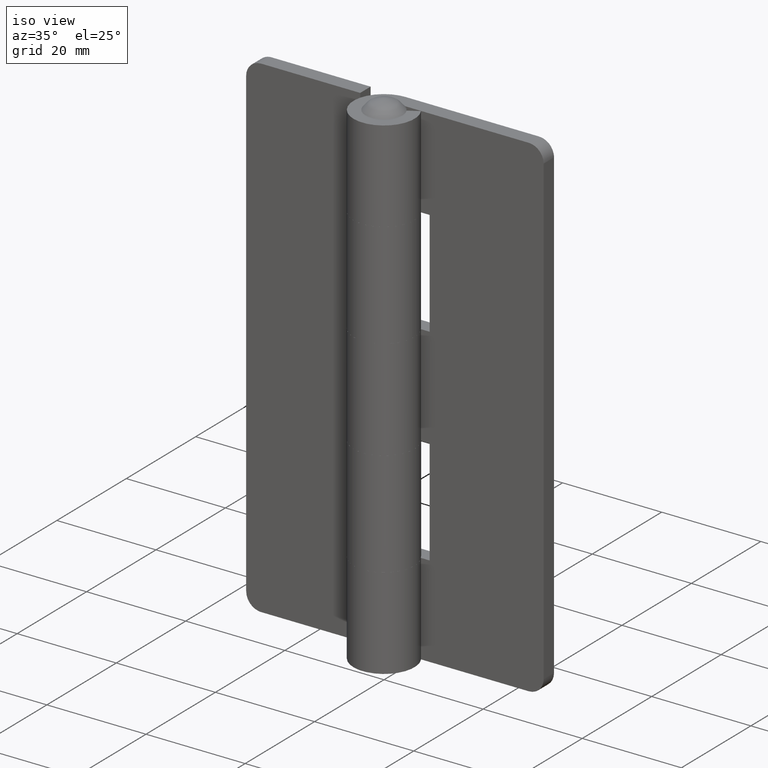
[diagram: clean part render]
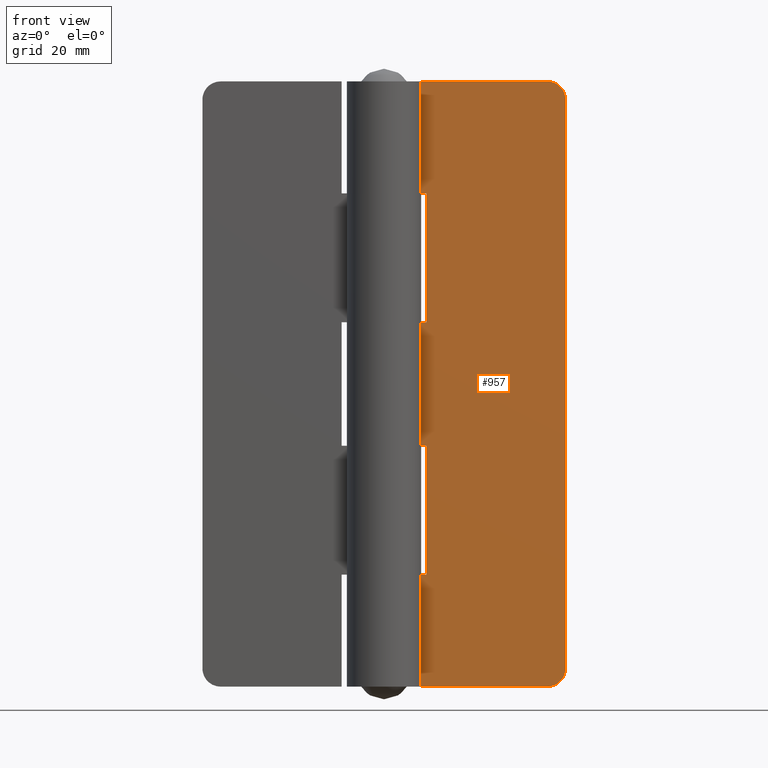
[diagram: tour spotlight — one face highlighted and labeled with its STEP entity id]
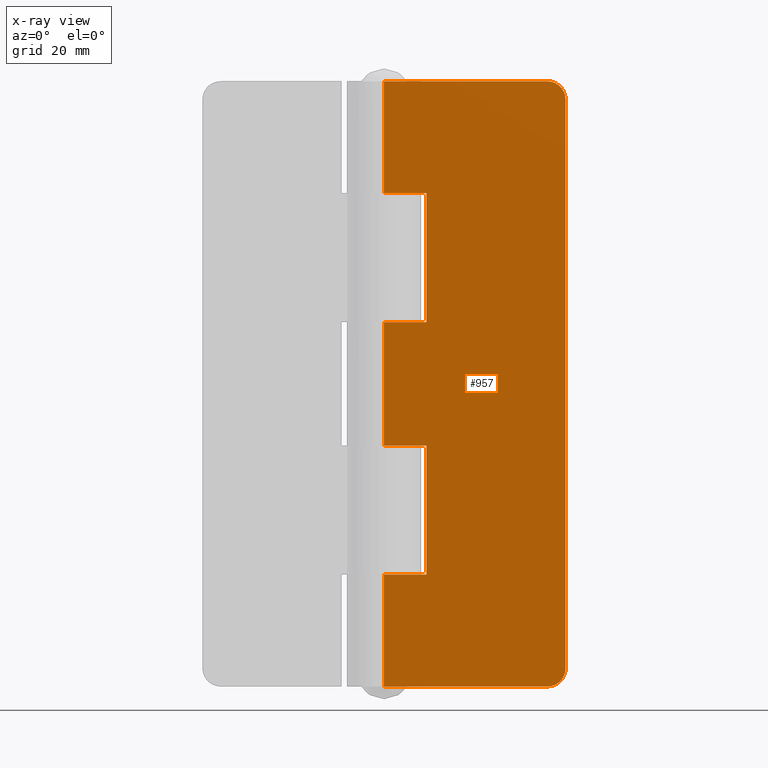
[diagram: x-ray of the same camera — body ghosted, this tour face saturated]
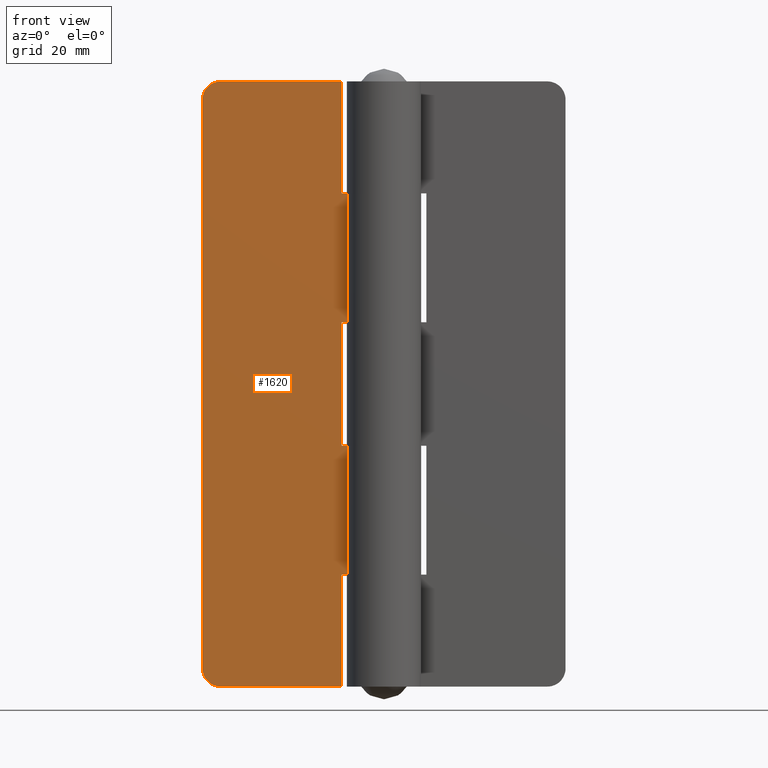
[diagram: tour spotlight — one face highlighted and labeled with its STEP entity id]
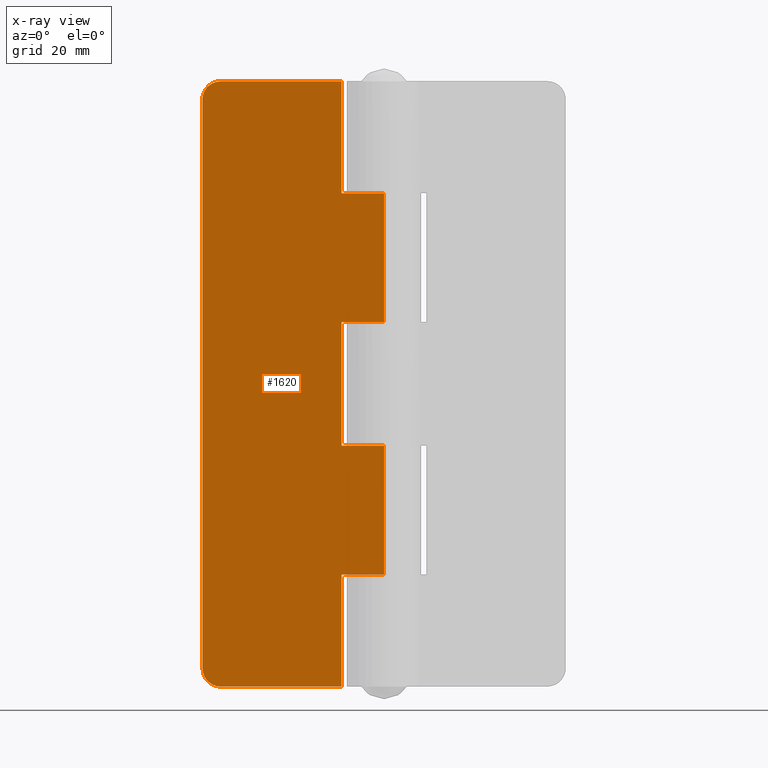
[diagram: x-ray of the same camera — body ghosted, this tour face saturated]
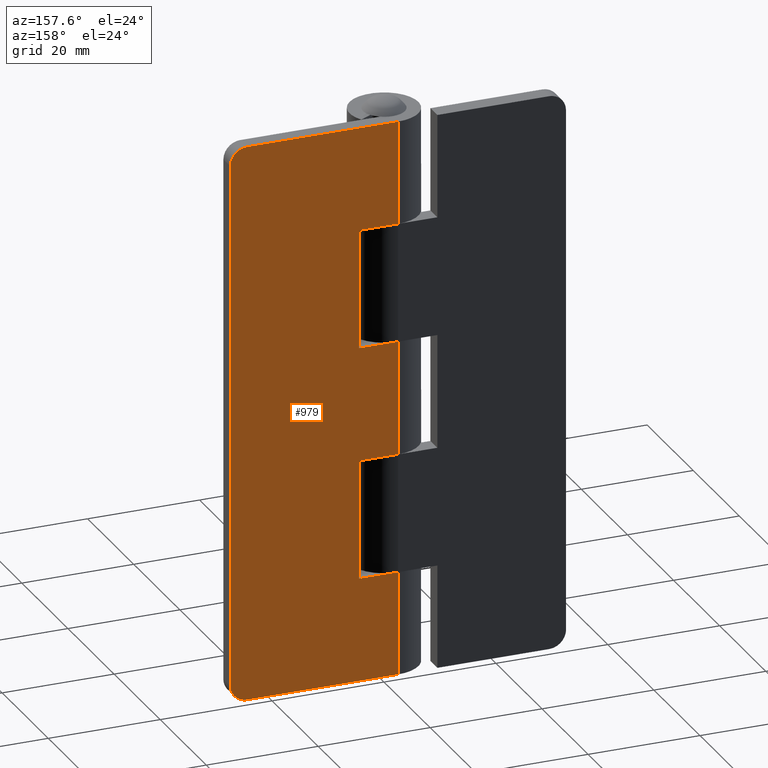
[diagram: tour spotlight — one face highlighted and labeled with its STEP entity id]
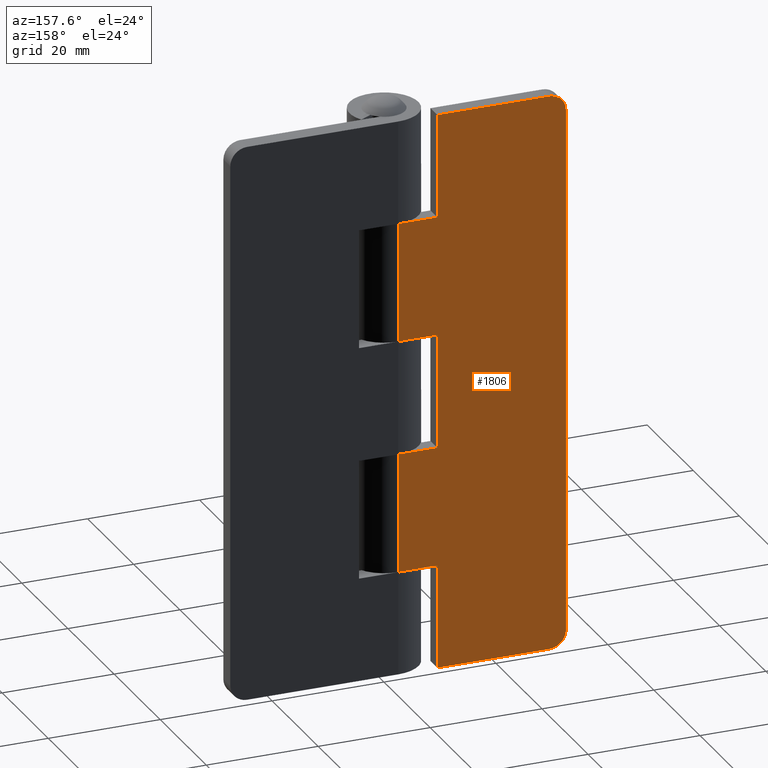
[diagram: tour spotlight — one face highlighted and labeled with its STEP entity id]
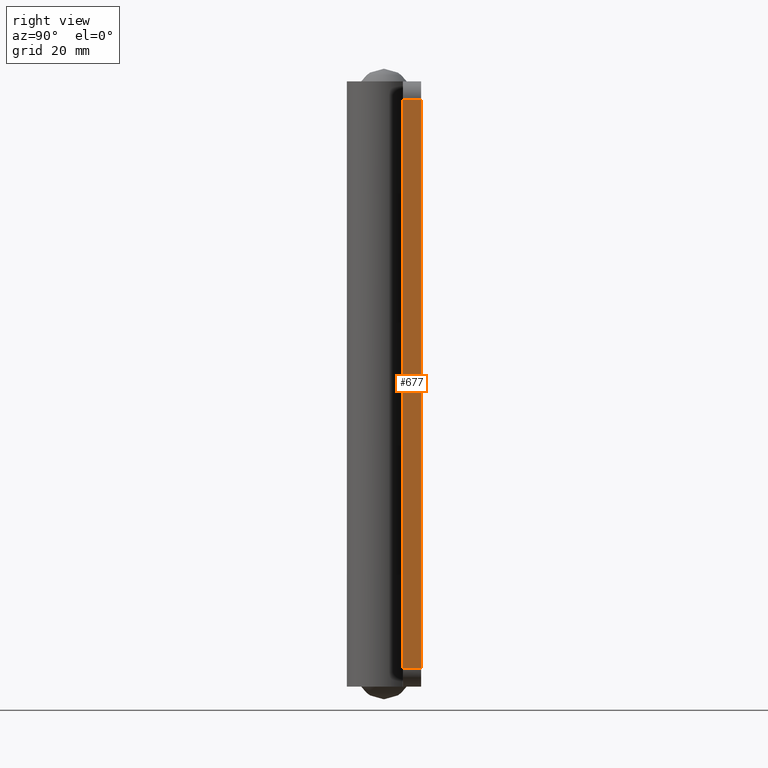
[diagram: tour spotlight — one face highlighted and labeled with its STEP entity id]
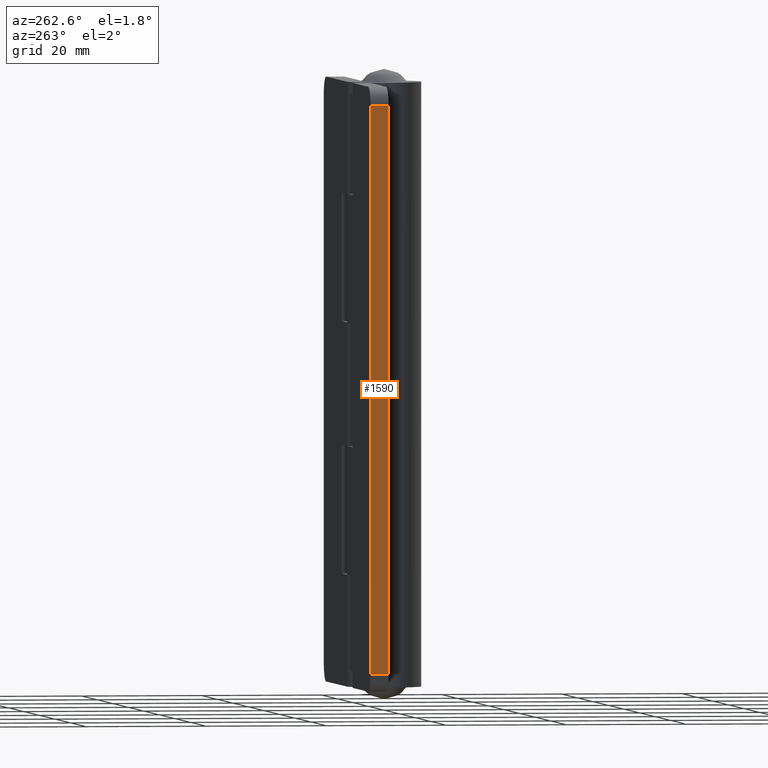
[diagram: tour spotlight — one face highlighted and labeled with its STEP entity id]
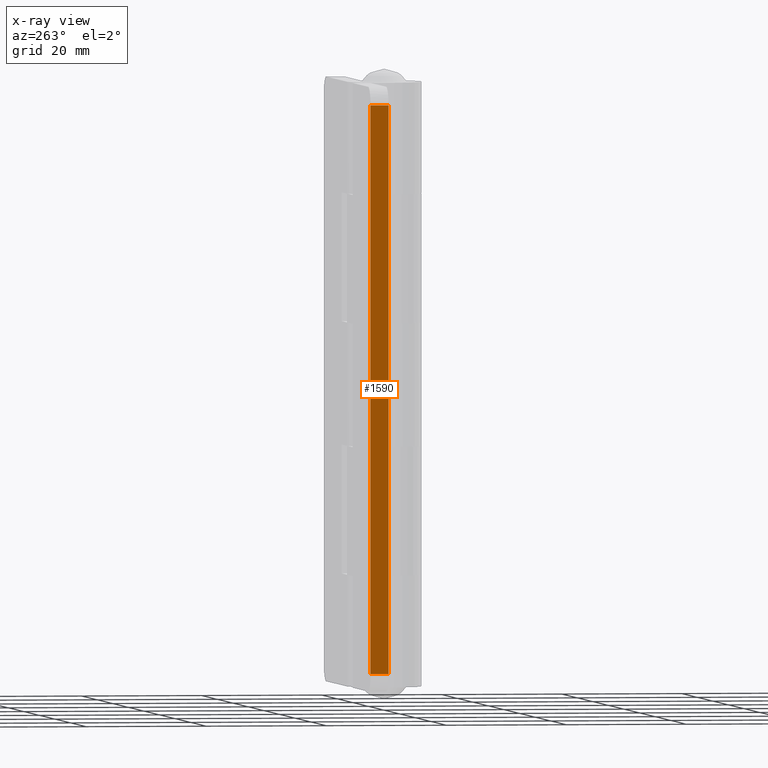
[diagram: x-ray of the same camera — body ghosted, this tour face saturated]
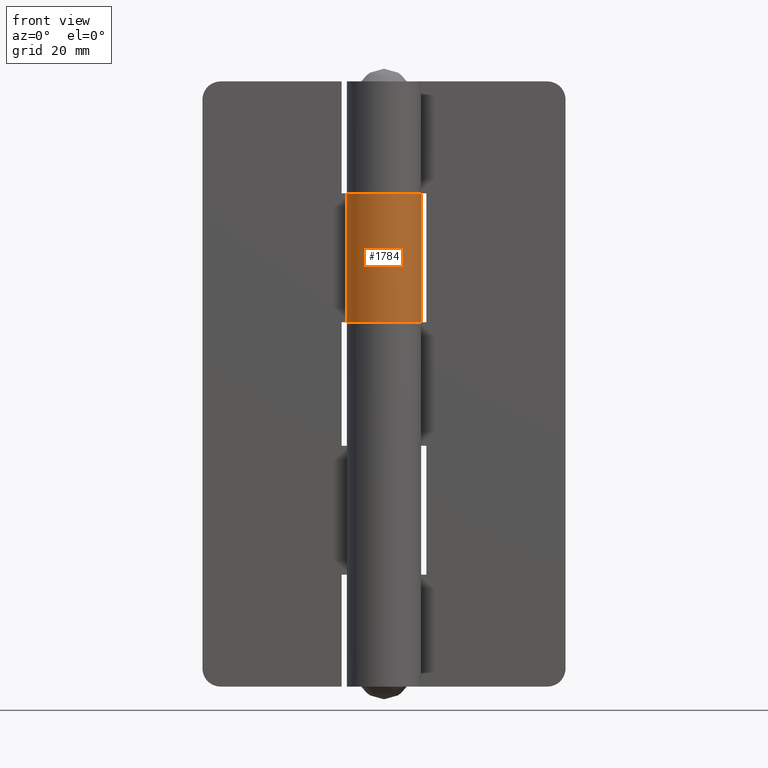
[diagram: tour spotlight — one face highlighted and labeled with its STEP entity id]
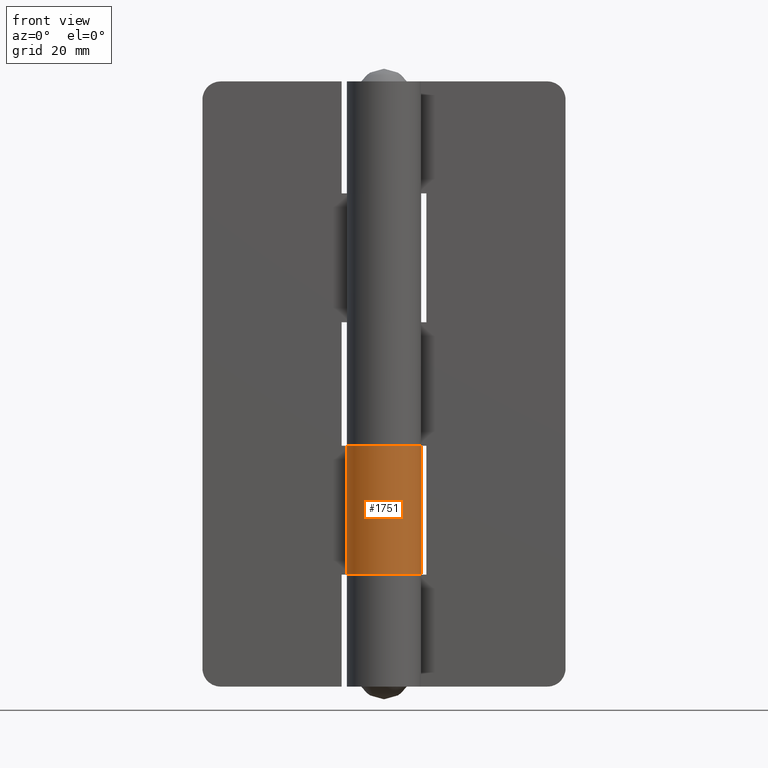
[diagram: tour spotlight — one face highlighted and labeled with its STEP entity id]
A machine part: a face-by-face anatomy tour. The part has 48 B-rep faces; the first image is the clean iso view, then the 8 largest visible faces are spotlighted one at a time (largest first), each with its STEP entity span.

Face 1 — front view, entity #957. An x-ray twin of the same camera follows (body ghosted, this face saturated) — the face is partly hidden behind the body. In plain terms, the highlighted face is a freeform B-spline surface patch.
Definition (entity closure, byte-faithful):
#75=CARTESIAN_POINT('',(27.0,3.150000000000000,100.0));
#76=VERTEX_POINT('',#75);
#82=CARTESIAN_POINT('',(30.0,3.150000000000000,97.0));
#83=VERTEX_POINT('',#82);
#84=CARTESIAN_POINT('',(30.0,3.150000000000000,97.0));
#85=CARTESIAN_POINT('',(30.000000000000004,3.149999999999999,100.0));
#86=CARTESIAN_POINT('',(27.0,3.150000000000000,100.0));
#94=(BOUNDED_CURVE()B_SPLINE_CURVE(2,(#84,#85,#86),.UNSPECIFIED.,.F.,.U.)CURVE()GEOMETRIC_REPRESENTATION_ITEM()QUASI_UNIFORM_CURVE()RATIONAL_B_SPLINE_CURVE((1.0,0.707106781186548,1.0))REPRESENTATION_ITEM(''));
#95=EDGE_CURVE('',#83,#76,#94,.T.);
#136=CARTESIAN_POINT('',(30.0,3.150000000000000,3.0));
#137=VERTEX_POINT('',#136);
#143=CARTESIAN_POINT('',(27.0,3.150000000000000,0.0));
#144=VERTEX_POINT('',#143);
#145=CARTESIAN_POINT('',(27.0,3.150000000000000,0.0));
#146=CARTESIAN_POINT('',(30.000000000000004,3.149999999999999,0.0));
#147=CARTESIAN_POINT('',(30.0,3.150000000000000,3.0));
#155=(BOUNDED_CURVE()B_SPLINE_CURVE(2,(#145,#146,#147),.UNSPECIFIED.,.F.,.U.)CURVE()GEOMETRIC_REPRESENTATION_ITEM()QUASI_UNIFORM_CURVE()RATIONAL_B_SPLINE_CURVE((1.0,0.707106781186548,1.0))REPRESENTATION_ITEM(''));
#156=EDGE_CURVE('',#144,#137,#155,.T.);
#171=CARTESIAN_POINT('',(0.0,3.150000000000000,39.799999999999997));
#172=VERTEX_POINT('',#171);
#229=CARTESIAN_POINT('',(7.0,3.150000000000000,39.799999999999997));
#230=VERTEX_POINT('',#229);
#236=CARTESIAN_POINT('',(0.0,3.150000000000000,39.799999999999997));
#237=CARTESIAN_POINT('',(7.0,3.150000000000000,39.799999999999997));
#238=QUASI_UNIFORM_CURVE('',1,(#236,#237),.UNSPECIFIED.,.F.,.U.);
#239=EDGE_CURVE('',#172,#230,#238,.T.);
#249=CARTESIAN_POINT('',(7.0,3.150000000000000,18.500000000000000));
#250=VERTEX_POINT('',#249);
#293=CARTESIAN_POINT('',(0.0,3.150000000000000,18.500000000000000));
#294=VERTEX_POINT('',#293);
#314=CARTESIAN_POINT('',(7.0,3.150000000000000,18.500000000000000));
#315=CARTESIAN_POINT('',(0.0,3.150000000000000,18.500000000000000));
#316=QUASI_UNIFORM_CURVE('',1,(#314,#315),.UNSPECIFIED.,.F.,.U.);
#317=EDGE_CURVE('',#250,#294,#316,.T.);
#334=CARTESIAN_POINT('',(7.0,3.150000000000000,39.799999999999997));
#335=CARTESIAN_POINT('',(7.0,3.150000000000000,18.500000000000000));
#336=QUASI_UNIFORM_CURVE('',1,(#334,#335),.UNSPECIFIED.,.F.,.U.);
#337=EDGE_CURVE('',#230,#250,#336,.T.);
#347=CARTESIAN_POINT('',(7.0,3.150000000000000,60.200000000000003));
#348=VERTEX_POINT('',#347);
#391=CARTESIAN_POINT('',(0.0,3.150000000000000,60.200000000000003));
#392=VERTEX_POINT('',#391);
#412=CARTESIAN_POINT('',(7.0,3.150000000000000,60.200000000000003));
#413=CARTESIAN_POINT('',(0.0,3.150000000000000,60.200000000000003));
#414=QUASI_UNIFORM_CURVE('',1,(#412,#413),.UNSPECIFIED.,.F.,.U.);
#415=EDGE_CURVE('',#348,#392,#414,.T.);
#425=CARTESIAN_POINT('',(0.0,3.150000000000000,81.500000000000000));
#426=VERTEX_POINT('',#425);
#483=CARTESIAN_POINT('',(7.0,3.150000000000000,81.500000000000000));
#484=VERTEX_POINT('',#483);
#490=CARTESIAN_POINT('',(0.0,3.150000000000000,81.500000000000000));
#491=CARTESIAN_POINT('',(7.0,3.150000000000000,81.500000000000000));
#492=QUASI_UNIFORM_CURVE('',1,(#490,#491),.UNSPECIFIED.,.F.,.U.);
#493=EDGE_CURVE('',#426,#484,#492,.T.);
#510=CARTESIAN_POINT('',(7.0,3.150000000000000,81.500000000000000));
#511=CARTESIAN_POINT('',(7.0,3.150000000000000,60.200000000000003));
#512=QUASI_UNIFORM_CURVE('',1,(#510,#511),.UNSPECIFIED.,.F.,.U.);
#513=EDGE_CURVE('',#484,#348,#512,.T.);
#531=CARTESIAN_POINT('',(0.0,3.150000000000000,0.0));
#532=VERTEX_POINT('',#531);
#533=CARTESIAN_POINT('',(27.0,3.150000000000000,0.0));
#534=CARTESIAN_POINT('',(0.0,3.150000000000000,0.0));
#535=QUASI_UNIFORM_CURVE('',1,(#533,#534),.UNSPECIFIED.,.F.,.U.);
#536=EDGE_CURVE('',#144,#532,#535,.T.);
#593=CARTESIAN_POINT('',(0.0,3.150000000000000,100.0));
#594=VERTEX_POINT('',#593);
#595=CARTESIAN_POINT('',(27.0,3.150000000000000,100.0));
#596=CARTESIAN_POINT('',(0.0,3.150000000000000,100.0));
#597=QUASI_UNIFORM_CURVE('',1,(#595,#596),.UNSPECIFIED.,.F.,.U.);
#598=EDGE_CURVE('',#76,#594,#597,.T.);
#663=CARTESIAN_POINT('',(30.0,3.150000000000000,97.0));
#664=CARTESIAN_POINT('',(30.0,3.150000000000000,3.0));
#665=QUASI_UNIFORM_CURVE('',1,(#663,#664),.UNSPECIFIED.,.F.,.U.);
#666=EDGE_CURVE('',#83,#137,#665,.T.);
#754=CARTESIAN_POINT('',(0.0,3.150000000000000,100.0));
#755=CARTESIAN_POINT('',(0.0,3.150000000000000,81.500000000000000));
#756=QUASI_UNIFORM_CURVE('',1,(#754,#755),.UNSPECIFIED.,.F.,.U.);
#757=EDGE_CURVE('',#594,#426,#756,.T.);
#893=CARTESIAN_POINT('',(0.0,3.150000000000000,60.200000000000003));
#894=CARTESIAN_POINT('',(0.0,3.150000000000000,39.799999999999997));
#895=QUASI_UNIFORM_CURVE('',1,(#893,#894),.UNSPECIFIED.,.F.,.U.);
#896=EDGE_CURVE('',#392,#172,#895,.T.);
#928=CARTESIAN_POINT('',(0.0,3.150000000000000,18.500000000000000));
#929=CARTESIAN_POINT('',(0.0,3.150000000000000,0.0));
#930=QUASI_UNIFORM_CURVE('',1,(#928,#929),.UNSPECIFIED.,.F.,.U.);
#931=EDGE_CURVE('',#294,#532,#930,.T.);
#936=CARTESIAN_POINT('',(-1.498499941854179,3.150000000000000,104.994999806180600));
#937=CARTESIAN_POINT('',(-1.498499941854179,3.150000000000000,-4.995002488389611));
#938=CARTESIAN_POINT('',(31.498500746516889,3.150000000000000,104.994999806180600));
#939=CARTESIAN_POINT('',(31.498500746516889,3.150000000000000,-4.995002488389611));
#940=B_SPLINE_SURFACE_WITH_KNOTS('',1,1,((#936,#938),(#937,#939)),.UNSPECIFIED.,.F.,.F.,.U.,(2,2),(2,2),(0.0,109.990002294570200),(0.0,32.997000688371067),.UNSPECIFIED.);
#941=ORIENTED_EDGE('',*,*,#536,.F.);
#942=ORIENTED_EDGE('',*,*,#156,.T.);
#943=ORIENTED_EDGE('',*,*,#666,.F.);
#944=ORIENTED_EDGE('',*,*,#95,.T.);
#945=ORIENTED_EDGE('',*,*,#598,.T.);
#946=ORIENTED_EDGE('',*,*,#757,.T.);
#947=ORIENTED_EDGE('',*,*,#493,.T.);
#948=ORIENTED_EDGE('',*,*,#513,.T.);
#949=ORIENTED_EDGE('',*,*,#415,.T.);
#950=ORIENTED_EDGE('',*,*,#896,.T.);
#951=ORIENTED_EDGE('',*,*,#239,.T.);
#952=ORIENTED_EDGE('',*,*,#337,.T.);
#953=ORIENTED_EDGE('',*,*,#317,.T.);
#954=ORIENTED_EDGE('',*,*,#931,.T.);
#955=EDGE_LOOP('',(#941,#942,#943,#944,#945,#946,#947,#948,#949,#950,#951,#952,#953,#954));
#956=FACE_OUTER_BOUND('',#955,.T.);
#957=ADVANCED_FACE('',(#956),#940,.T.);

Face 2 — front view, entity #1620. An x-ray twin of the same camera follows (body ghosted, this face saturated) — the face is partly hidden behind the body. In plain terms, the highlighted face is a freeform B-spline surface patch.
Definition (entity closure, byte-faithful):
#1035=CARTESIAN_POINT('',(-27.0,3.150000000000000,100.0));
#1036=VERTEX_POINT('',#1035);
#1037=CARTESIAN_POINT('',(-30.0,3.150000000000000,97.0));
#1038=VERTEX_POINT('',#1037);
#1039=CARTESIAN_POINT('',(-27.0,3.150000000000000,100.0));
#1040=CARTESIAN_POINT('',(-30.000000000000004,3.149999999999999,100.0));
#1041=CARTESIAN_POINT('',(-30.0,3.150000000000000,97.0));
#1049=(BOUNDED_CURVE()B_SPLINE_CURVE(2,(#1039,#1040,#1041),.UNSPECIFIED.,.F.,.U.)CURVE()GEOMETRIC_REPRESENTATION_ITEM()QUASI_UNIFORM_CURVE()RATIONAL_B_SPLINE_CURVE((1.0,0.707106781186548,1.0))REPRESENTATION_ITEM(''));
#1050=EDGE_CURVE('',#1036,#1038,#1049,.T.);
#1096=CARTESIAN_POINT('',(-30.0,3.150000000000000,3.0));
#1097=VERTEX_POINT('',#1096);
#1098=CARTESIAN_POINT('',(-27.0,3.150000000000000,0.0));
#1099=VERTEX_POINT('',#1098);
#1100=CARTESIAN_POINT('',(-30.0,3.150000000000000,3.0));
#1101=CARTESIAN_POINT('',(-30.000000000000004,3.149999999999999,0.0));
#1102=CARTESIAN_POINT('',(-27.0,3.150000000000000,0.0));
#1110=(BOUNDED_CURVE()B_SPLINE_CURVE(2,(#1100,#1101,#1102),.UNSPECIFIED.,.F.,.U.)CURVE()GEOMETRIC_REPRESENTATION_ITEM()QUASI_UNIFORM_CURVE()RATIONAL_B_SPLINE_CURVE((1.0,0.707106781186548,1.0))REPRESENTATION_ITEM(''));
#1111=EDGE_CURVE('',#1097,#1099,#1110,.T.);
#1157=CARTESIAN_POINT('',(-7.000000000000100,3.150000000000000,39.799999999999997));
#1158=VERTEX_POINT('',#1157);
#1164=CARTESIAN_POINT('',(1.928787E-016,3.150000000000000,39.799999999999997));
#1165=VERTEX_POINT('',#1164);
#1166=CARTESIAN_POINT('',(1.928787E-016,3.150000000000000,39.799999999999997));
#1167=CARTESIAN_POINT('',(-7.000000000000100,3.150000000000000,39.799999999999997));
#1168=QUASI_UNIFORM_CURVE('',1,(#1166,#1167),.UNSPECIFIED.,.F.,.U.);
#1169=EDGE_CURVE('',#1165,#1158,#1168,.T.);
#1234=CARTESIAN_POINT('',(-7.000000000000100,3.150000000000000,60.200000000000003));
#1235=VERTEX_POINT('',#1234);
#1241=CARTESIAN_POINT('',(-7.000000000000100,3.150000000000000,39.799999999999997));
#1242=CARTESIAN_POINT('',(-7.000000000000100,3.150000000000000,60.200000000000003));
#1243=QUASI_UNIFORM_CURVE('',1,(#1241,#1242),.UNSPECIFIED.,.F.,.U.);
#1244=EDGE_CURVE('',#1158,#1235,#1243,.T.);
#1284=CARTESIAN_POINT('',(1.928787E-016,3.150000000000000,60.200000000000003));
#1285=VERTEX_POINT('',#1284);
#1305=CARTESIAN_POINT('',(-7.000000000000100,3.150000000000000,60.200000000000003));
#1306=CARTESIAN_POINT('',(1.928787E-016,3.150000000000000,60.200000000000003));
#1307=QUASI_UNIFORM_CURVE('',1,(#1305,#1306),.UNSPECIFIED.,.F.,.U.);
#1308=EDGE_CURVE('',#1235,#1285,#1307,.T.);
#1354=CARTESIAN_POINT('',(1.928787E-016,3.150000000000000,18.500000000000000));
#1355=VERTEX_POINT('',#1354);
#1375=CARTESIAN_POINT('',(-7.000000000000100,3.150000000000000,18.500000000000000));
#1376=VERTEX_POINT('',#1375);
#1377=CARTESIAN_POINT('',(1.928787E-016,3.150000000000000,18.500000000000000));
#1378=CARTESIAN_POINT('',(-7.000000000000100,3.150000000000000,18.500000000000000));
#1379=QUASI_UNIFORM_CURVE('',1,(#1377,#1378),.UNSPECIFIED.,.F.,.U.);
#1380=EDGE_CURVE('',#1355,#1376,#1379,.T.);
#1402=CARTESIAN_POINT('',(-7.000000000000100,3.150000000000000,0.0));
#1403=VERTEX_POINT('',#1402);
#1404=CARTESIAN_POINT('',(-7.000000000000100,3.150000000000000,18.500000000000000));
#1405=CARTESIAN_POINT('',(-7.000000000000100,3.150000000000000,0.0));
#1406=QUASI_UNIFORM_CURVE('',1,(#1404,#1405),.UNSPECIFIED.,.F.,.U.);
#1407=EDGE_CURVE('',#1376,#1403,#1406,.T.);
#1460=CARTESIAN_POINT('',(-7.000000000000100,3.150000000000000,81.500000000000000));
#1461=VERTEX_POINT('',#1460);
#1467=CARTESIAN_POINT('',(1.928787E-016,3.150000000000000,81.500000000000000));
#1468=VERTEX_POINT('',#1467);
#1469=CARTESIAN_POINT('',(-7.000000000000100,3.150000000000000,81.500000000000000));
#1470=CARTESIAN_POINT('',(1.928787E-016,3.150000000000000,81.500000000000000));
#1471=QUASI_UNIFORM_CURVE('',1,(#1469,#1470),.UNSPECIFIED.,.F.,.U.);
#1472=EDGE_CURVE('',#1461,#1468,#1471,.T.);
#1508=CARTESIAN_POINT('',(-7.000000000000100,3.150000000000000,100.0));
#1509=VERTEX_POINT('',#1508);
#1510=CARTESIAN_POINT('',(-7.000000000000100,3.150000000000000,100.0));
#1511=CARTESIAN_POINT('',(-7.000000000000100,3.150000000000000,81.500000000000000));
#1512=QUASI_UNIFORM_CURVE('',1,(#1510,#1511),.UNSPECIFIED.,.F.,.U.);
#1513=EDGE_CURVE('',#1509,#1461,#1512,.T.);
#1536=CARTESIAN_POINT('',(-7.000000000000100,3.150000000000000,0.0));
#1537=CARTESIAN_POINT('',(-27.0,3.150000000000000,0.0));
#1538=QUASI_UNIFORM_CURVE('',1,(#1536,#1537),.UNSPECIFIED.,.F.,.U.);
#1539=EDGE_CURVE('',#1403,#1099,#1538,.T.);
#1562=CARTESIAN_POINT('',(-7.000000000000100,3.150000000000000,100.0));
#1563=CARTESIAN_POINT('',(-27.0,3.150000000000000,100.0));
#1564=QUASI_UNIFORM_CURVE('',1,(#1562,#1563),.UNSPECIFIED.,.F.,.U.);
#1565=EDGE_CURVE('',#1509,#1036,#1564,.T.);
#1582=CARTESIAN_POINT('',(-30.0,3.150000000000000,97.0));
#1583=CARTESIAN_POINT('',(-30.0,3.150000000000000,3.0));
#1584=QUASI_UNIFORM_CURVE('',1,(#1582,#1583),.UNSPECIFIED.,.F.,.U.);
#1585=EDGE_CURVE('',#1038,#1097,#1584,.T.);
#1591=CARTESIAN_POINT('',(-31.498499941854181,3.150000000000000,104.994999806180600));
#1592=CARTESIAN_POINT('',(-31.498499941854181,3.150000000000000,-4.995002488389611));
#1593=CARTESIAN_POINT('',(1.498500746516883,3.150000000000000,104.994999806180600));
#1594=CARTESIAN_POINT('',(1.498500746516883,3.150000000000000,-4.995002488389611));
#1595=B_SPLINE_SURFACE_WITH_KNOTS('',1,1,((#1591,#1593),(#1592,#1594)),.UNSPECIFIED.,.F.,.F.,.U.,(2,2),(2,2),(0.0,109.990002294570200),(0.0,32.997000688371060),.UNSPECIFIED.);
#1596=ORIENTED_EDGE('',*,*,#1585,.T.);
#1597=ORIENTED_EDGE('',*,*,#1111,.T.);
#1598=ORIENTED_EDGE('',*,*,#1539,.F.);
#1599=ORIENTED_EDGE('',*,*,#1407,.F.);
#1600=ORIENTED_EDGE('',*,*,#1380,.F.);
#1601=CARTESIAN_POINT('',(1.928787E-016,3.150000000000000,39.799999999999997));
#1602=CARTESIAN_POINT('',(1.928787E-016,3.150000000000000,18.500000000000000));
#1603=QUASI_UNIFORM_CURVE('',1,(#1601,#1602),.UNSPECIFIED.,.F.,.U.);
#1604=EDGE_CURVE('',#1165,#1355,#1603,.T.);
#1605=ORIENTED_EDGE('',*,*,#1604,.F.);
#1606=ORIENTED_EDGE('',*,*,#1169,.T.);
#1607=ORIENTED_EDGE('',*,*,#1244,.T.);
#1608=ORIENTED_EDGE('',*,*,#1308,.T.);
#1609=CARTESIAN_POINT('',(1.928787E-016,3.150000000000000,81.500000000000000));
#1610=CARTESIAN_POINT('',(1.928787E-016,3.150000000000000,60.200000000000003));
#1611=QUASI_UNIFORM_CURVE('',1,(#1609,#1610),.UNSPECIFIED.,.F.,.U.);
#1612=EDGE_CURVE('',#1468,#1285,#1611,.T.);
#1613=ORIENTED_EDGE('',*,*,#1612,.F.);
#1614=ORIENTED_EDGE('',*,*,#1472,.F.);
#1615=ORIENTED_EDGE('',*,*,#1513,.F.);
#1616=ORIENTED_EDGE('',*,*,#1565,.T.);
#1617=ORIENTED_EDGE('',*,*,#1050,.T.);
#1618=EDGE_LOOP('',(#1596,#1597,#1598,#1599,#1600,#1605,#1606,#1607,#1608,#1613,#1614,#1615,#1616,#1617));
#1619=FACE_OUTER_BOUND('',#1618,.T.);
#1620=ADVANCED_FACE('',(#1619),#1595,.T.);

Face 3 — auxiliary view, entity #979. In plain terms, the highlighted face is a freeform B-spline surface patch.
Definition (entity closure, byte-faithful):
#58=CARTESIAN_POINT('',(27.0,6.150000000000000,100.0));
#59=VERTEX_POINT('',#58);
#60=CARTESIAN_POINT('',(30.0,6.150000000000000,97.0));
#61=VERTEX_POINT('',#60);
#62=CARTESIAN_POINT('',(27.0,6.150000000000000,100.0));
#63=CARTESIAN_POINT('',(30.000000000000004,6.150000000000002,100.0));
#64=CARTESIAN_POINT('',(30.0,6.150000000000000,97.0));
#72=(BOUNDED_CURVE()B_SPLINE_CURVE(2,(#62,#63,#64),.UNSPECIFIED.,.F.,.U.)CURVE()GEOMETRIC_REPRESENTATION_ITEM()QUASI_UNIFORM_CURVE()RATIONAL_B_SPLINE_CURVE((1.0,0.707106781186548,1.0))REPRESENTATION_ITEM(''));
#73=EDGE_CURVE('',#59,#61,#72,.T.);
#119=CARTESIAN_POINT('',(30.0,6.150000000000000,3.0));
#120=VERTEX_POINT('',#119);
#121=CARTESIAN_POINT('',(27.0,6.150000000000000,0.0));
#122=VERTEX_POINT('',#121);
#123=CARTESIAN_POINT('',(30.0,6.150000000000000,3.0));
#124=CARTESIAN_POINT('',(30.000000000000004,6.150000000000002,0.0));
#125=CARTESIAN_POINT('',(27.0,6.150000000000000,0.0));
#133=(BOUNDED_CURVE()B_SPLINE_CURVE(2,(#123,#124,#125),.UNSPECIFIED.,.F.,.U.)CURVE()GEOMETRIC_REPRESENTATION_ITEM()QUASI_UNIFORM_CURVE()RATIONAL_B_SPLINE_CURVE((1.0,0.707106781186548,1.0))REPRESENTATION_ITEM(''));
#134=EDGE_CURVE('',#120,#122,#133,.T.);
#201=CARTESIAN_POINT('',(0.0,6.150000000000000,39.799999999999997));
#202=VERTEX_POINT('',#201);
#222=CARTESIAN_POINT('',(7.0,6.150000000000000,39.799999999999997));
#223=VERTEX_POINT('',#222);
#224=CARTESIAN_POINT('',(0.0,6.150000000000000,39.799999999999997));
#225=CARTESIAN_POINT('',(7.0,6.150000000000000,39.799999999999997));
#226=QUASI_UNIFORM_CURVE('',1,(#224,#225),.UNSPECIFIED.,.F.,.U.);
#227=EDGE_CURVE('',#202,#223,#226,.T.);
#251=CARTESIAN_POINT('',(7.0,6.150000000000000,18.500000000000000));
#252=VERTEX_POINT('',#251);
#258=CARTESIAN_POINT('',(0.0,6.150000000000000,18.500000000000000));
#259=VERTEX_POINT('',#258);
#260=CARTESIAN_POINT('',(7.0,6.150000000000000,18.500000000000000));
#261=CARTESIAN_POINT('',(0.0,6.150000000000000,18.500000000000000));
#262=QUASI_UNIFORM_CURVE('',1,(#260,#261),.UNSPECIFIED.,.F.,.U.);
#263=EDGE_CURVE('',#252,#259,#262,.T.);
#328=CARTESIAN_POINT('',(7.0,6.150000000000000,39.799999999999997));
#329=CARTESIAN_POINT('',(7.0,6.150000000000000,18.500000000000000));
#330=QUASI_UNIFORM_CURVE('',1,(#328,#329),.UNSPECIFIED.,.F.,.U.);
#331=EDGE_CURVE('',#223,#252,#330,.T.);
#349=CARTESIAN_POINT('',(7.0,6.150000000000000,60.200000000000003));
#350=VERTEX_POINT('',#349);
#356=CARTESIAN_POINT('',(0.0,6.150000000000000,60.200000000000003));
#357=VERTEX_POINT('',#356);
#358=CARTESIAN_POINT('',(0.0,6.150000000000000,60.200000000000003));
#359=CARTESIAN_POINT('',(7.0,6.150000000000000,60.200000000000003));
#360=QUASI_UNIFORM_CURVE('',1,(#358,#359),.UNSPECIFIED.,.F.,.U.);
#361=EDGE_CURVE('',#357,#350,#360,.T.);
#455=CARTESIAN_POINT('',(0.0,6.150000000000000,81.500000000000000));
#456=VERTEX_POINT('',#455);
#476=CARTESIAN_POINT('',(7.0,6.150000000000000,81.500000000000000));
#477=VERTEX_POINT('',#476);
#478=CARTESIAN_POINT('',(7.0,6.150000000000000,81.500000000000000));
#479=CARTESIAN_POINT('',(0.0,6.150000000000000,81.500000000000000));
#480=QUASI_UNIFORM_CURVE('',1,(#478,#479),.UNSPECIFIED.,.F.,.U.);
#481=EDGE_CURVE('',#477,#456,#480,.T.);
#504=CARTESIAN_POINT('',(7.0,6.150000000000000,60.200000000000003));
#505=CARTESIAN_POINT('',(7.0,6.150000000000000,81.500000000000000));
#506=QUASI_UNIFORM_CURVE('',1,(#504,#505),.UNSPECIFIED.,.F.,.U.);
#507=EDGE_CURVE('',#350,#477,#506,.T.);
#523=CARTESIAN_POINT('',(-1.129699E-015,6.150000000000000,0.0));
#524=VERTEX_POINT('',#523);
#525=CARTESIAN_POINT('',(-1.129699E-015,6.150000000000000,0.0));
#526=CARTESIAN_POINT('',(27.0,6.150000000000000,0.0));
#527=QUASI_UNIFORM_CURVE('',1,(#525,#526),.UNSPECIFIED.,.F.,.U.);
#528=EDGE_CURVE('',#524,#122,#527,.T.);
#601=CARTESIAN_POINT('',(-1.129699E-015,6.150000000000000,100.0));
#602=VERTEX_POINT('',#601);
#603=CARTESIAN_POINT('',(-1.129699E-015,6.150000000000000,100.0));
#604=CARTESIAN_POINT('',(27.0,6.150000000000000,100.0));
#605=QUASI_UNIFORM_CURVE('',1,(#603,#604),.UNSPECIFIED.,.F.,.U.);
#606=EDGE_CURVE('',#602,#59,#605,.T.);
#669=CARTESIAN_POINT('',(30.0,6.150000000000000,97.0));
#670=CARTESIAN_POINT('',(30.0,6.150000000000000,3.0));
#671=QUASI_UNIFORM_CURVE('',1,(#669,#670),.UNSPECIFIED.,.F.,.U.);
#672=EDGE_CURVE('',#61,#120,#671,.T.);
#707=CARTESIAN_POINT('',(-1.129699E-015,6.150000000000000,100.0));
#708=CARTESIAN_POINT('',(0.0,6.150000000000000,81.500000000000000));
#709=QUASI_UNIFORM_CURVE('',1,(#707,#708),.UNSPECIFIED.,.F.,.U.);
#710=EDGE_CURVE('',#602,#456,#709,.T.);
#793=CARTESIAN_POINT('',(0.0,6.150000000000000,60.200000000000003));
#794=CARTESIAN_POINT('',(0.0,6.150000000000000,39.799999999999997));
#795=QUASI_UNIFORM_CURVE('',1,(#793,#794),.UNSPECIFIED.,.F.,.U.);
#796=EDGE_CURVE('',#357,#202,#795,.T.);
#824=CARTESIAN_POINT('',(0.0,6.150000000000000,18.500000000000000));
#825=CARTESIAN_POINT('',(-1.129699E-015,6.150000000000000,0.0));
#826=QUASI_UNIFORM_CURVE('',1,(#824,#825),.UNSPECIFIED.,.F.,.U.);
#827=EDGE_CURVE('',#259,#524,#826,.T.);
#958=CARTESIAN_POINT('',(-1.498499941854179,6.150000000000000,-4.994999806180597));
#959=CARTESIAN_POINT('',(-1.498499941854179,6.150000000000000,104.995002488389600));
#960=CARTESIAN_POINT('',(31.498500746516889,6.150000000000000,-4.994999806180597));
#961=CARTESIAN_POINT('',(31.498500746516889,6.150000000000000,104.995002488389600));
#962=B_SPLINE_SURFACE_WITH_KNOTS('',1,1,((#958,#960),(#959,#961)),.UNSPECIFIED.,.F.,.F.,.U.,(2,2),(2,2),(0.0,109.990002294570200),(0.0,32.997000688371067),.UNSPECIFIED.);
#963=ORIENTED_EDGE('',*,*,#672,.T.);
#964=ORIENTED_EDGE('',*,*,#134,.T.);
#965=ORIENTED_EDGE('',*,*,#528,.F.);
#966=ORIENTED_EDGE('',*,*,#827,.F.);
#967=ORIENTED_EDGE('',*,*,#263,.F.);
#968=ORIENTED_EDGE('',*,*,#331,.F.);
#969=ORIENTED_EDGE('',*,*,#227,.F.);
#970=ORIENTED_EDGE('',*,*,#796,.F.);
#971=ORIENTED_EDGE('',*,*,#361,.T.);
#972=ORIENTED_EDGE('',*,*,#507,.T.);
#973=ORIENTED_EDGE('',*,*,#481,.T.);
#974=ORIENTED_EDGE('',*,*,#710,.F.);
#975=ORIENTED_EDGE('',*,*,#606,.T.);
#976=ORIENTED_EDGE('',*,*,#73,.T.);
#977=EDGE_LOOP('',(#963,#964,#965,#966,#967,#968,#969,#970,#971,#972,#973,#974,#975,#976));
#978=FACE_OUTER_BOUND('',#977,.T.);
#979=ADVANCED_FACE('',(#978),#962,.T.);

Face 4 — auxiliary view, entity #1806. In plain terms, the highlighted face is a freeform B-spline surface patch.
Definition (entity closure, byte-faithful):
#1052=CARTESIAN_POINT('',(-27.0,6.150000000000000,100.0));
#1053=VERTEX_POINT('',#1052);
#1059=CARTESIAN_POINT('',(-30.0,6.150000000000000,97.0));
#1060=VERTEX_POINT('',#1059);
#1061=CARTESIAN_POINT('',(-30.0,6.150000000000000,97.0));
#1062=CARTESIAN_POINT('',(-30.000000000000004,6.150000000000002,100.0));
#1063=CARTESIAN_POINT('',(-27.0,6.150000000000000,100.0));
#1071=(BOUNDED_CURVE()B_SPLINE_CURVE(2,(#1061,#1062,#1063),.UNSPECIFIED.,.F.,.U.)CURVE()GEOMETRIC_REPRESENTATION_ITEM()QUASI_UNIFORM_CURVE()RATIONAL_B_SPLINE_CURVE((1.0,0.707106781186548,1.0))REPRESENTATION_ITEM(''));
#1072=EDGE_CURVE('',#1060,#1053,#1071,.T.);
#1113=CARTESIAN_POINT('',(-30.0,6.150000000000000,3.0));
#1114=VERTEX_POINT('',#1113);
#1120=CARTESIAN_POINT('',(-27.0,6.150000000000000,0.0));
#1121=VERTEX_POINT('',#1120);
#1122=CARTESIAN_POINT('',(-27.0,6.150000000000000,0.0));
#1123=CARTESIAN_POINT('',(-30.000000000000004,6.150000000000002,0.0));
#1124=CARTESIAN_POINT('',(-30.0,6.150000000000000,3.0));
#1132=(BOUNDED_CURVE()B_SPLINE_CURVE(2,(#1122,#1123,#1124),.UNSPECIFIED.,.F.,.U.)CURVE()GEOMETRIC_REPRESENTATION_ITEM()QUASI_UNIFORM_CURVE()RATIONAL_B_SPLINE_CURVE((1.0,0.707106781186548,1.0))REPRESENTATION_ITEM(''));
#1133=EDGE_CURVE('',#1121,#1114,#1132,.T.);
#1148=CARTESIAN_POINT('',(-7.000000000000100,6.150000000000000,39.799999999999997));
#1149=VERTEX_POINT('',#1148);
#1150=CARTESIAN_POINT('',(0.0,6.150000000000000,39.799999999999997));
#1151=VERTEX_POINT('',#1150);
#1152=CARTESIAN_POINT('',(-7.000000000000100,6.150000000000000,39.799999999999997));
#1153=CARTESIAN_POINT('',(0.0,6.150000000000000,39.799999999999997));
#1154=QUASI_UNIFORM_CURVE('',1,(#1152,#1153),.UNSPECIFIED.,.F.,.U.);
#1155=EDGE_CURVE('',#1149,#1151,#1154,.T.);
#1227=CARTESIAN_POINT('',(-7.000000000000100,6.150000000000000,60.200000000000003));
#1228=VERTEX_POINT('',#1227);
#1229=CARTESIAN_POINT('',(-7.000000000000100,6.150000000000000,60.200000000000003));
#1230=CARTESIAN_POINT('',(-7.000000000000100,6.150000000000000,39.799999999999997));
#1231=QUASI_UNIFORM_CURVE('',1,(#1229,#1230),.UNSPECIFIED.,.F.,.U.);
#1232=EDGE_CURVE('',#1228,#1149,#1231,.T.);
#1256=CARTESIAN_POINT('',(0.0,6.150000000000000,60.200000000000003));
#1257=VERTEX_POINT('',#1256);
#1311=CARTESIAN_POINT('',(0.0,6.150000000000000,60.200000000000003));
#1312=CARTESIAN_POINT('',(-7.000000000000100,6.150000000000000,60.200000000000003));
#1313=QUASI_UNIFORM_CURVE('',1,(#1311,#1312),.UNSPECIFIED.,.F.,.U.);
#1314=EDGE_CURVE('',#1257,#1228,#1313,.T.);
#1324=CARTESIAN_POINT('',(0.0,6.150000000000000,18.500000000000000));
#1325=VERTEX_POINT('',#1324);
#1382=CARTESIAN_POINT('',(-7.000000000000100,6.150000000000000,18.500000000000000));
#1383=VERTEX_POINT('',#1382);
#1389=CARTESIAN_POINT('',(0.0,6.150000000000000,18.500000000000000));
#1390=CARTESIAN_POINT('',(-7.000000000000100,6.150000000000000,18.500000000000000));
#1391=QUASI_UNIFORM_CURVE('',1,(#1389,#1390),.UNSPECIFIED.,.F.,.U.);
#1392=EDGE_CURVE('',#1325,#1383,#1391,.T.);
#1409=CARTESIAN_POINT('',(-7.000000000000100,6.150000000000000,0.0));
#1410=VERTEX_POINT('',#1409);
#1416=CARTESIAN_POINT('',(-7.000000000000100,6.150000000000000,18.500000000000000));
#1417=CARTESIAN_POINT('',(-7.000000000000100,6.150000000000000,0.0));
#1418=QUASI_UNIFORM_CURVE('',1,(#1416,#1417),.UNSPECIFIED.,.F.,.U.);
#1419=EDGE_CURVE('',#1383,#1410,#1418,.T.);
#1432=CARTESIAN_POINT('',(0.0,6.150000000000000,81.500000000000000));
#1433=VERTEX_POINT('',#1432);
#1453=CARTESIAN_POINT('',(-7.000000000000100,6.150000000000000,81.500000000000000));
#1454=VERTEX_POINT('',#1453);
#1455=CARTESIAN_POINT('',(0.0,6.150000000000000,81.500000000000000));
#1456=CARTESIAN_POINT('',(-7.000000000000100,6.150000000000000,81.500000000000000));
#1457=QUASI_UNIFORM_CURVE('',1,(#1455,#1456),.UNSPECIFIED.,.F.,.U.);
#1458=EDGE_CURVE('',#1433,#1454,#1457,.T.);
#1516=CARTESIAN_POINT('',(-7.000000000000100,6.150000000000000,100.0));
#1517=VERTEX_POINT('',#1516);
#1518=CARTESIAN_POINT('',(-7.000000000000100,6.150000000000000,81.500000000000000));
#1519=CARTESIAN_POINT('',(-7.000000000000100,6.150000000000000,100.0));
#1520=QUASI_UNIFORM_CURVE('',1,(#1518,#1519),.UNSPECIFIED.,.F.,.U.);
#1521=EDGE_CURVE('',#1454,#1517,#1520,.T.);
#1542=CARTESIAN_POINT('',(-27.0,6.150000000000000,0.0));
#1543=CARTESIAN_POINT('',(-7.000000000000100,6.150000000000000,0.0));
#1544=QUASI_UNIFORM_CURVE('',1,(#1542,#1543),.UNSPECIFIED.,.F.,.U.);
#1545=EDGE_CURVE('',#1121,#1410,#1544,.T.);
#1556=CARTESIAN_POINT('',(-27.0,6.150000000000000,100.0));
#1557=CARTESIAN_POINT('',(-7.000000000000100,6.150000000000000,100.0));
#1558=QUASI_UNIFORM_CURVE('',1,(#1556,#1557),.UNSPECIFIED.,.F.,.U.);
#1559=EDGE_CURVE('',#1053,#1517,#1558,.T.);
#1576=CARTESIAN_POINT('',(-30.0,6.150000000000000,97.0));
#1577=CARTESIAN_POINT('',(-30.0,6.150000000000000,3.0));
#1578=QUASI_UNIFORM_CURVE('',1,(#1576,#1577),.UNSPECIFIED.,.F.,.U.);
#1579=EDGE_CURVE('',#1060,#1114,#1578,.T.);
#1744=CARTESIAN_POINT('',(0.0,6.150000000000000,39.799999999999997));
#1745=CARTESIAN_POINT('',(0.0,6.150000000000000,18.500000000000000));
#1746=QUASI_UNIFORM_CURVE('',1,(#1744,#1745),.UNSPECIFIED.,.F.,.U.);
#1747=EDGE_CURVE('',#1151,#1325,#1746,.T.);
#1775=CARTESIAN_POINT('',(0.0,6.150000000000000,81.500000000000000));
#1776=CARTESIAN_POINT('',(0.0,6.150000000000000,60.200000000000003));
#1777=QUASI_UNIFORM_CURVE('',1,(#1775,#1776),.UNSPECIFIED.,.F.,.U.);
#1778=EDGE_CURVE('',#1433,#1257,#1777,.T.);
#1785=CARTESIAN_POINT('',(-31.498499941854181,6.150000000000000,-4.994999806180597));
#1786=CARTESIAN_POINT('',(-31.498499941854181,6.150000000000000,104.995002488389600));
#1787=CARTESIAN_POINT('',(1.498500746516883,6.150000000000000,-4.994999806180597));
#1788=CARTESIAN_POINT('',(1.498500746516883,6.150000000000000,104.995002488389600));
#1789=B_SPLINE_SURFACE_WITH_KNOTS('',1,1,((#1785,#1787),(#1786,#1788)),.UNSPECIFIED.,.F.,.F.,.U.,(2,2),(2,2),(0.0,109.990002294570200),(0.0,32.997000688371060),.UNSPECIFIED.);
#1790=ORIENTED_EDGE('',*,*,#1545,.F.);
#1791=ORIENTED_EDGE('',*,*,#1133,.T.);
#1792=ORIENTED_EDGE('',*,*,#1579,.F.);
#1793=ORIENTED_EDGE('',*,*,#1072,.T.);
#1794=ORIENTED_EDGE('',*,*,#1559,.T.);
#1795=ORIENTED_EDGE('',*,*,#1521,.F.);
#1796=ORIENTED_EDGE('',*,*,#1458,.F.);
#1797=ORIENTED_EDGE('',*,*,#1778,.T.);
#1798=ORIENTED_EDGE('',*,*,#1314,.T.);
#1799=ORIENTED_EDGE('',*,*,#1232,.T.);
#1800=ORIENTED_EDGE('',*,*,#1155,.T.);
#1801=ORIENTED_EDGE('',*,*,#1747,.T.);
#1802=ORIENTED_EDGE('',*,*,#1392,.T.);
#1803=ORIENTED_EDGE('',*,*,#1419,.T.);
#1804=EDGE_LOOP('',(#1790,#1791,#1792,#1793,#1794,#1795,#1796,#1797,#1798,#1799,#1800,#1801,#1802,#1803));
#1805=FACE_OUTER_BOUND('',#1804,.T.);
#1806=ADVANCED_FACE('',(#1805),#1789,.T.);

Face 5 — right view, entity #677. In plain terms, the highlighted face is a freeform B-spline surface patch.
Definition (entity closure, byte-faithful):
#60=CARTESIAN_POINT('',(30.0,6.150000000000000,97.0));
#61=VERTEX_POINT('',#60);
#82=CARTESIAN_POINT('',(30.0,3.150000000000000,97.0));
#83=VERTEX_POINT('',#82);
#97=CARTESIAN_POINT('',(30.0,6.150000000000000,97.0));
#98=CARTESIAN_POINT('',(30.0,3.150000000000000,97.0));
#99=QUASI_UNIFORM_CURVE('',1,(#97,#98),.UNSPECIFIED.,.F.,.U.);
#100=EDGE_CURVE('',#61,#83,#99,.T.);
#119=CARTESIAN_POINT('',(30.0,6.150000000000000,3.0));
#120=VERTEX_POINT('',#119);
#136=CARTESIAN_POINT('',(30.0,3.150000000000000,3.0));
#137=VERTEX_POINT('',#136);
#138=CARTESIAN_POINT('',(30.0,3.150000000000000,3.0));
#139=CARTESIAN_POINT('',(30.0,6.150000000000000,3.0));
#140=QUASI_UNIFORM_CURVE('',1,(#138,#139),.UNSPECIFIED.,.F.,.U.);
#141=EDGE_CURVE('',#137,#120,#140,.T.);
#658=CARTESIAN_POINT('',(30.0,3.000150090300142,101.695299817809800));
#659=CARTESIAN_POINT('',(30.0,3.000150090300142,-1.695302339086233));
#660=CARTESIAN_POINT('',(30.0,6.299850070632400,101.695299817809800));
#661=CARTESIAN_POINT('',(30.0,6.299850070632400,-1.695302339086233));
#662=B_SPLINE_SURFACE_WITH_KNOTS('',1,1,((#658,#660),(#659,#661)),.UNSPECIFIED.,.F.,.F.,.U.,(2,2),(2,2),(0.0,103.390602156895990),(0.0,3.299699980332258),.UNSPECIFIED.);
#663=CARTESIAN_POINT('',(30.0,3.150000000000000,97.0));
#664=CARTESIAN_POINT('',(30.0,3.150000000000000,3.0));
#665=QUASI_UNIFORM_CURVE('',1,(#663,#664),.UNSPECIFIED.,.F.,.U.);
#666=EDGE_CURVE('',#83,#137,#665,.T.);
#667=ORIENTED_EDGE('',*,*,#666,.T.);
#668=ORIENTED_EDGE('',*,*,#141,.T.);
#669=CARTESIAN_POINT('',(30.0,6.150000000000000,97.0));
#670=CARTESIAN_POINT('',(30.0,6.150000000000000,3.0));
#671=QUASI_UNIFORM_CURVE('',1,(#669,#670),.UNSPECIFIED.,.F.,.U.);
#672=EDGE_CURVE('',#61,#120,#671,.T.);
#673=ORIENTED_EDGE('',*,*,#672,.F.);
#674=ORIENTED_EDGE('',*,*,#100,.T.);
#675=EDGE_LOOP('',(#667,#668,#673,#674));
#676=FACE_OUTER_BOUND('',#675,.T.);
#677=ADVANCED_FACE('',(#676),#662,.T.);

Face 6 — auxiliary view, entity #1590. An x-ray twin of the same camera follows (body ghosted, this face saturated) — the face is partly hidden behind the body. In plain terms, the highlighted face is a freeform B-spline surface patch.
Definition (entity closure, byte-faithful):
#1037=CARTESIAN_POINT('',(-30.0,3.150000000000000,97.0));
#1038=VERTEX_POINT('',#1037);
#1059=CARTESIAN_POINT('',(-30.0,6.150000000000000,97.0));
#1060=VERTEX_POINT('',#1059);
#1074=CARTESIAN_POINT('',(-30.0,3.150000000000000,97.0));
#1075=CARTESIAN_POINT('',(-30.0,6.150000000000000,97.0));
#1076=QUASI_UNIFORM_CURVE('',1,(#1074,#1075),.UNSPECIFIED.,.F.,.U.);
#1077=EDGE_CURVE('',#1038,#1060,#1076,.T.);
#1096=CARTESIAN_POINT('',(-30.0,3.150000000000000,3.0));
#1097=VERTEX_POINT('',#1096);
#1113=CARTESIAN_POINT('',(-30.0,6.150000000000000,3.0));
#1114=VERTEX_POINT('',#1113);
#1115=CARTESIAN_POINT('',(-30.0,6.150000000000000,3.0));
#1116=CARTESIAN_POINT('',(-30.0,3.150000000000000,3.0));
#1117=QUASI_UNIFORM_CURVE('',1,(#1115,#1116),.UNSPECIFIED.,.F.,.U.);
#1118=EDGE_CURVE('',#1114,#1097,#1117,.T.);
#1571=CARTESIAN_POINT('',(-30.0,3.000150090300142,-1.695299817809760));
#1572=CARTESIAN_POINT('',(-30.0,3.000150090300142,101.695302339086200));
#1573=CARTESIAN_POINT('',(-30.0,6.299850070632400,-1.695299817809760));
#1574=CARTESIAN_POINT('',(-30.0,6.299850070632400,101.695302339086200));
#1575=B_SPLINE_SURFACE_WITH_KNOTS('',1,1,((#1571,#1573),(#1572,#1574)),.UNSPECIFIED.,.F.,.F.,.U.,(2,2),(2,2),(0.0,103.390602156895990),(0.0,3.299699980332258),.UNSPECIFIED.);
#1576=CARTESIAN_POINT('',(-30.0,6.150000000000000,97.0));
#1577=CARTESIAN_POINT('',(-30.0,6.150000000000000,3.0));
#1578=QUASI_UNIFORM_CURVE('',1,(#1576,#1577),.UNSPECIFIED.,.F.,.U.);
#1579=EDGE_CURVE('',#1060,#1114,#1578,.T.);
#1580=ORIENTED_EDGE('',*,*,#1579,.T.);
#1581=ORIENTED_EDGE('',*,*,#1118,.T.);
#1582=CARTESIAN_POINT('',(-30.0,3.150000000000000,97.0));
#1583=CARTESIAN_POINT('',(-30.0,3.150000000000000,3.0));
#1584=QUASI_UNIFORM_CURVE('',1,(#1582,#1583),.UNSPECIFIED.,.F.,.U.);
#1585=EDGE_CURVE('',#1038,#1097,#1584,.T.);
#1586=ORIENTED_EDGE('',*,*,#1585,.F.);
#1587=ORIENTED_EDGE('',*,*,#1077,.T.);
#1588=EDGE_LOOP('',(#1580,#1581,#1586,#1587));
#1589=FACE_OUTER_BOUND('',#1588,.T.);
#1590=ADVANCED_FACE('',(#1589),#1575,.T.);

Face 7 — front view, entity #1784. In plain terms, the highlighted face is a freeform B-spline surface patch.
Definition (entity closure, byte-faithful):
#1254=CARTESIAN_POINT('',(-5.311544031635240,3.100000000000000,60.200000000000003));
#1255=VERTEX_POINT('',#1254);
#1256=CARTESIAN_POINT('',(0.0,6.150000000000000,60.200000000000003));
#1257=VERTEX_POINT('',#1256);
#1258=CARTESIAN_POINT('',(-5.311544031635243,3.100000000000005,60.200000000000003));
#1259=CARTESIAN_POINT('',(-7.693152769405606,-0.980651508643380,60.199999999999996));
#1260=CARTESIAN_POINT('',(-4.364009819617648,-4.333349546745652,60.200000000000003));
#1261=CARTESIAN_POINT('',(-1.034866869829693,-7.686047584847921,60.199999999999996));
#1262=CARTESIAN_POINT('',(3.062474489689663,-5.333268228769301,60.200000000000003));
#1263=CARTESIAN_POINT('',(7.159815849209024,-2.980488872690681,60.199999999999996));
#1264=CARTESIAN_POINT('',(5.942310140296080,1.584755563654659,60.200000000000003));
#1265=CARTESIAN_POINT('',(4.724804431383133,6.150000000000000,60.199999999999996));
#1266=CARTESIAN_POINT('',(0.0,6.150000000000000,60.200000000000003));
#1274=(BOUNDED_CURVE()B_SPLINE_CURVE(2,(#1258,#1259,#1260,#1261,#1262,#1263,#1264,#1265,#1266),.UNSPECIFIED.,.F.,.U.)B_SPLINE_CURVE_WITH_KNOTS((3,2,2,2,3),(0.0,0.250000000000000,0.500000000000000,0.750000000000000,1.0),.UNSPECIFIED.)CURVE()GEOMETRIC_REPRESENTATION_ITEM()RATIONAL_B_SPLINE_CURVE((1.0,0.792995533243587,1.0,0.792995533243587,1.0,0.792995533243587,1.0,0.792995533243587,1.0))REPRESENTATION_ITEM(''));
#1275=EDGE_CURVE('',#1255,#1257,#1274,.T.);
#1430=CARTESIAN_POINT('',(-5.311544031635240,3.100000000000000,81.500000000000000));
#1431=VERTEX_POINT('',#1430);
#1432=CARTESIAN_POINT('',(0.0,6.150000000000000,81.500000000000000));
#1433=VERTEX_POINT('',#1432);
#1434=CARTESIAN_POINT('',(-5.311544031635243,3.100000000000005,81.500000000000000));
#1435=CARTESIAN_POINT('',(-7.693152769405606,-0.980651508643380,81.500000000000000));
#1436=CARTESIAN_POINT('',(-4.364009819617648,-4.333349546745652,81.500000000000000));
#1437=CARTESIAN_POINT('',(-1.034866869829693,-7.686047584847921,81.500000000000000));
#1438=CARTESIAN_POINT('',(3.062474489689663,-5.333268228769301,81.500000000000000));
#1439=CARTESIAN_POINT('',(7.159815849209024,-2.980488872690681,81.500000000000000));
#1440=CARTESIAN_POINT('',(5.942310140296080,1.584755563654659,81.500000000000000));
#1441=CARTESIAN_POINT('',(4.724804431383133,6.150000000000000,81.500000000000000));
#1442=CARTESIAN_POINT('',(0.0,6.150000000000000,81.500000000000000));
#1450=(BOUNDED_CURVE()B_SPLINE_CURVE(2,(#1434,#1435,#1436,#1437,#1438,#1439,#1440,#1441,#1442),.UNSPECIFIED.,.F.,.U.)B_SPLINE_CURVE_WITH_KNOTS((3,2,2,2,3),(0.0,0.250000000000000,0.500000000000000,0.750000000000000,1.0),.UNSPECIFIED.)CURVE()GEOMETRIC_REPRESENTATION_ITEM()RATIONAL_B_SPLINE_CURVE((1.0,0.792995533243587,1.0,0.792995533243587,1.0,0.792995533243587,1.0,0.792995533243587,1.0))REPRESENTATION_ITEM(''));
#1451=EDGE_CURVE('',#1431,#1433,#1450,.T.);
#1710=CARTESIAN_POINT('',(-5.311544031635240,3.100000000000000,81.500000000000000));
#1711=CARTESIAN_POINT('',(-5.311544031635240,3.100000000000000,60.200000000000003));
#1712=QUASI_UNIFORM_CURVE('',1,(#1710,#1711),.UNSPECIFIED.,.F.,.U.);
#1713=EDGE_CURVE('',#1431,#1255,#1712,.T.);
#1752=CARTESIAN_POINT('',(-5.186857391749244,3.304392591332966,82.032500000000013));
#1753=CARTESIAN_POINT('',(-5.186857391749244,3.304392591332966,59.654187499999992));
#1754=CARTESIAN_POINT('',(-9.291800217342713,-3.139076956893018,82.032500000000027));
#1755=CARTESIAN_POINT('',(-9.291800217342713,-3.139076956893018,59.654187500000006));
#1756=CARTESIAN_POINT('',(-2.120225707035173,-5.772966564187528,82.032500000000013));
#1757=CARTESIAN_POINT('',(-2.120225707035173,-5.772966564187528,59.654187499999992));
#1758=CARTESIAN_POINT('',(5.051348803272367,-8.406856171482039,82.032500000000027));
#1759=CARTESIAN_POINT('',(5.051348803272367,-8.406856171482039,59.654187500000006));
#1760=CARTESIAN_POINT('',(6.092612607645071,-0.838195450455489,82.032500000000013));
#1761=CARTESIAN_POINT('',(6.092612607645071,-0.838195450455489,59.654187499999992));
#1762=CARTESIAN_POINT('',(7.133876412017775,6.730465270571060,82.032500000000027));
#1763=CARTESIAN_POINT('',(7.133876412017775,6.730465270571060,59.654187500000006));
#1764=CARTESIAN_POINT('',(-0.482523438726250,6.131041602458733,82.032500000000013));
#1765=CARTESIAN_POINT('',(-0.482523438726250,6.131041602458733,59.654187499999992));
#1773=(BOUNDED_SURFACE()B_SPLINE_SURFACE(1,2,((#1752,#1754,#1756,#1758,#1760,#1762,#1764),(#1753,#1755,#1757,#1759,#1761,#1763,#1765)),.UNSPECIFIED.,.F.,.F.,.U.)B_SPLINE_SURFACE_WITH_KNOTS((2,2),(3,2,2,3),(0.0,22.378312500000021),(0.0,11.777547856181391,23.555095712362782,35.332643568544171),.UNSPECIFIED.)GEOMETRIC_REPRESENTATION_ITEM()RATIONAL_B_SPLINE_SURFACE(((1.0,0.627057105746662,1.0,0.627057105746662,1.0,0.627057105746662,1.0),(1.0,0.627057105746662,1.0,0.627057105746662,1.0,0.627057105746662,1.0)))REPRESENTATION_ITEM('')SURFACE());
#1774=ORIENTED_EDGE('',*,*,#1275,.T.);
#1775=CARTESIAN_POINT('',(0.0,6.150000000000000,81.500000000000000));
#1776=CARTESIAN_POINT('',(0.0,6.150000000000000,60.200000000000003));
#1777=QUASI_UNIFORM_CURVE('',1,(#1775,#1776),.UNSPECIFIED.,.F.,.U.);
#1778=EDGE_CURVE('',#1433,#1257,#1777,.T.);
#1779=ORIENTED_EDGE('',*,*,#1778,.F.);
#1780=ORIENTED_EDGE('',*,*,#1451,.F.);
#1781=ORIENTED_EDGE('',*,*,#1713,.T.);
#1782=EDGE_LOOP('',(#1774,#1779,#1780,#1781));
#1783=FACE_OUTER_BOUND('',#1782,.T.);
#1784=ADVANCED_FACE('',(#1783),#1773,.T.);

Face 8 — front view, entity #1751. In plain terms, the highlighted face is a freeform B-spline surface patch.
Definition (entity closure, byte-faithful):
#1150=CARTESIAN_POINT('',(0.0,6.150000000000000,39.799999999999997));
#1151=VERTEX_POINT('',#1150);
#1192=CARTESIAN_POINT('',(-5.311544031635240,3.100000000000000,39.799999999999997));
#1193=VERTEX_POINT('',#1192);
#1199=CARTESIAN_POINT('',(0.0,6.150000000000000,39.799999999999997));
#1200=CARTESIAN_POINT('',(4.724804431383132,6.150000000000000,39.800000000000004));
#1201=CARTESIAN_POINT('',(5.942310140296078,1.584755563654662,39.799999999999997));
#1202=CARTESIAN_POINT('',(7.159815849209021,-2.980488872690673,39.800000000000004));
#1203=CARTESIAN_POINT('',(3.062474489689671,-5.333268228769296,39.799999999999997));
#1204=CARTESIAN_POINT('',(-1.034866869829682,-7.686047584847922,39.800000000000004));
#1205=CARTESIAN_POINT('',(-4.364009819617642,-4.333349546745659,39.799999999999997));
#1206=CARTESIAN_POINT('',(-7.693152769405606,-0.980651508643393,39.800000000000004));
#1207=CARTESIAN_POINT('',(-5.311544031635248,3.099999999999997,39.799999999999997));
#1215=(BOUNDED_CURVE()B_SPLINE_CURVE(2,(#1199,#1200,#1201,#1202,#1203,#1204,#1205,#1206,#1207),.UNSPECIFIED.,.F.,.U.)B_SPLINE_CURVE_WITH_KNOTS((3,2,2,2,3),(0.0,0.250000000000000,0.500000000000000,0.750000000000000,1.0),.UNSPECIFIED.)CURVE()GEOMETRIC_REPRESENTATION_ITEM()RATIONAL_B_SPLINE_CURVE((1.0,0.792995533243587,1.0,0.792995533243587,1.0,0.792995533243587,1.0,0.792995533243587,1.0))REPRESENTATION_ITEM(''));
#1216=EDGE_CURVE('',#1151,#1193,#1215,.T.);
#1324=CARTESIAN_POINT('',(0.0,6.150000000000000,18.500000000000000));
#1325=VERTEX_POINT('',#1324);
#1326=CARTESIAN_POINT('',(-5.311544031635240,3.100000000000000,18.500000000000000));
#1327=VERTEX_POINT('',#1326);
#1328=CARTESIAN_POINT('',(0.0,6.150000000000000,18.500000000000000));
#1329=CARTESIAN_POINT('',(4.724804431383132,6.150000000000000,18.500000000000004));
#1330=CARTESIAN_POINT('',(5.942310140296078,1.584755563654662,18.500000000000000));
#1331=CARTESIAN_POINT('',(7.159815849209021,-2.980488872690673,18.500000000000004));
#1332=CARTESIAN_POINT('',(3.062474489689671,-5.333268228769296,18.500000000000000));
#1333=CARTESIAN_POINT('',(-1.034866869829682,-7.686047584847922,18.500000000000004));
#1334=CARTESIAN_POINT('',(-4.364009819617642,-4.333349546745659,18.500000000000000));
#1335=CARTESIAN_POINT('',(-7.693152769405606,-0.980651508643393,18.500000000000004));
#1336=CARTESIAN_POINT('',(-5.311544031635248,3.099999999999997,18.500000000000000));
#1344=(BOUNDED_CURVE()B_SPLINE_CURVE(2,(#1328,#1329,#1330,#1331,#1332,#1333,#1334,#1335,#1336),.UNSPECIFIED.,.F.,.U.)B_SPLINE_CURVE_WITH_KNOTS((3,2,2,2,3),(0.0,0.250000000000000,0.500000000000000,0.750000000000000,1.0),.UNSPECIFIED.)CURVE()GEOMETRIC_REPRESENTATION_ITEM()RATIONAL_B_SPLINE_CURVE((1.0,0.792995533243587,1.0,0.792995533243587,1.0,0.792995533243587,1.0,0.792995533243587,1.0))REPRESENTATION_ITEM(''));
#1345=EDGE_CURVE('',#1325,#1327,#1344,.T.);
#1692=CARTESIAN_POINT('',(-5.311544031635240,3.100000000000000,39.799999999999997));
#1693=CARTESIAN_POINT('',(-5.311544031635240,3.100000000000000,18.500000000000000));
#1694=QUASI_UNIFORM_CURVE('',1,(#1692,#1693),.UNSPECIFIED.,.F.,.U.);
#1695=EDGE_CURVE('',#1193,#1327,#1694,.T.);
#1719=CARTESIAN_POINT('',(-5.186857391749244,3.304392591332966,40.332500000000010));
#1720=CARTESIAN_POINT('',(-5.186857391749244,3.304392591332966,17.954187500000000));
#1721=CARTESIAN_POINT('',(-9.291800217342713,-3.139076956893018,40.332500000000017));
#1722=CARTESIAN_POINT('',(-9.291800217342713,-3.139076956893018,17.954187500000000));
#1723=CARTESIAN_POINT('',(-2.120225707035173,-5.772966564187528,40.332500000000010));
#1724=CARTESIAN_POINT('',(-2.120225707035173,-5.772966564187528,17.954187500000000));
#1725=CARTESIAN_POINT('',(5.051348803272367,-8.406856171482039,40.332500000000017));
#1726=CARTESIAN_POINT('',(5.051348803272367,-8.406856171482039,17.954187500000000));
#1727=CARTESIAN_POINT('',(6.092612607645071,-0.838195450455489,40.332500000000010));
#1728=CARTESIAN_POINT('',(6.092612607645071,-0.838195450455489,17.954187500000000));
#1729=CARTESIAN_POINT('',(7.133876412017775,6.730465270571060,40.332500000000017));
#1730=CARTESIAN_POINT('',(7.133876412017775,6.730465270571060,17.954187500000000));
#1731=CARTESIAN_POINT('',(-0.482523438726250,6.131041602458733,40.332500000000010));
#1732=CARTESIAN_POINT('',(-0.482523438726250,6.131041602458733,17.954187500000000));
#1740=(BOUNDED_SURFACE()B_SPLINE_SURFACE(1,2,((#1719,#1721,#1723,#1725,#1727,#1729,#1731),(#1720,#1722,#1724,#1726,#1728,#1730,#1732)),.UNSPECIFIED.,.F.,.F.,.U.)B_SPLINE_SURFACE_WITH_KNOTS((2,2),(3,2,2,3),(0.0,22.378312500000010),(0.0,11.777547856181391,23.555095712362782,35.332643568544171),.UNSPECIFIED.)GEOMETRIC_REPRESENTATION_ITEM()RATIONAL_B_SPLINE_SURFACE(((1.0,0.627057105746662,1.0,0.627057105746662,1.0,0.627057105746662,1.0),(1.0,0.627057105746662,1.0,0.627057105746662,1.0,0.627057105746662,1.0)))REPRESENTATION_ITEM('')SURFACE());
#1741=ORIENTED_EDGE('',*,*,#1216,.T.);
#1742=ORIENTED_EDGE('',*,*,#1695,.T.);
#1743=ORIENTED_EDGE('',*,*,#1345,.F.);
#1744=CARTESIAN_POINT('',(0.0,6.150000000000000,39.799999999999997));
#1745=CARTESIAN_POINT('',(0.0,6.150000000000000,18.500000000000000));
#1746=QUASI_UNIFORM_CURVE('',1,(#1744,#1745),.UNSPECIFIED.,.F.,.U.);
#1747=EDGE_CURVE('',#1151,#1325,#1746,.T.);
#1748=ORIENTED_EDGE('',*,*,#1747,.F.);
#1749=EDGE_LOOP('',(#1741,#1742,#1743,#1748));
#1750=FACE_OUTER_BOUND('',#1749,.T.);
#1751=ADVANCED_FACE('',(#1750),#1740,.T.);